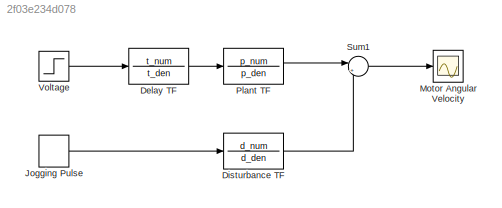
MODEL slx_2f03e234d078
KIND model
CONFIG AbsTol = auto
CONFIG EnableMultiTasking = off
CONFIG FixedStep = auto
CONFIG MaxStep = auto
CONFIG MinStep = auto
CONFIG RelTol = 1e-3
CONFIG SampleTimeConstraint = Unconstrained
CONFIG Solver = VariableStepAuto
CONFIG SolverName = VariableStepAuto
CONFIG StartTime = 0.0
CONFIG StopTime = 35
BLOCK [TransferFcn] Delay TF
  Denominator = t_den
  Numerator = t_num
BLOCK [TransferFcn] Disturbance TF
  Denominator = d_den
  Numerator = d_num
BLOCK [DiscretePulseGenerator] Jogging Pulse
  Amplitude = fd
  Period = 1
  Ports = [0, 1]
  PulseType = Time based
BLOCK [Scope] Motor Angular Velocity
  Floating = off
  NumInputPorts = 1
  Ports = [1]
  ScopeSpecificationString = Simulink.scopes.TimeScopeBlockCfg('CurrentConfiguration', extmgr.ConfigurationSet(extmgr.Configuration('Core','General UI',true),extmgr.Configuration('Core','Source UI',true),extmgr.Configuration('Sources','WiredSimulink',true,'DataLogging',true,'DataLoggingSaveFormat','Array'),extmgr.Configuration('Visuals','Time Domain',true,'SerializedDisplays',{struct('MinYLimReal','64.40221','MaxYLimReal','74...<+1458ch>
BLOCK [TransferFcn] Plant TF
  Denominator = p_den
  Numerator = p_num
BLOCK [Sum] Sum1
  IconShape = round
  InputSameDT = off
  Inputs = |++
  OutDataTypeStr = Inherit: Inherit via internal rule
  Ports = [2, 1]
  SaturateOnIntegerOverflow = off
BLOCK [Step] Voltage
  After = volt
  SampleTime = 0
LINE Delay TF:1 -> Plant TF:1
LINE Disturbance TF:1 -> Sum1:2
LINE Jogging Pulse:1 -> Disturbance TF:1
LINE Plant TF:1 -> Sum1:1
LINE Sum1:1 -> Motor Angular Velocity:1
LINE Voltage:1 -> Delay TF:1
